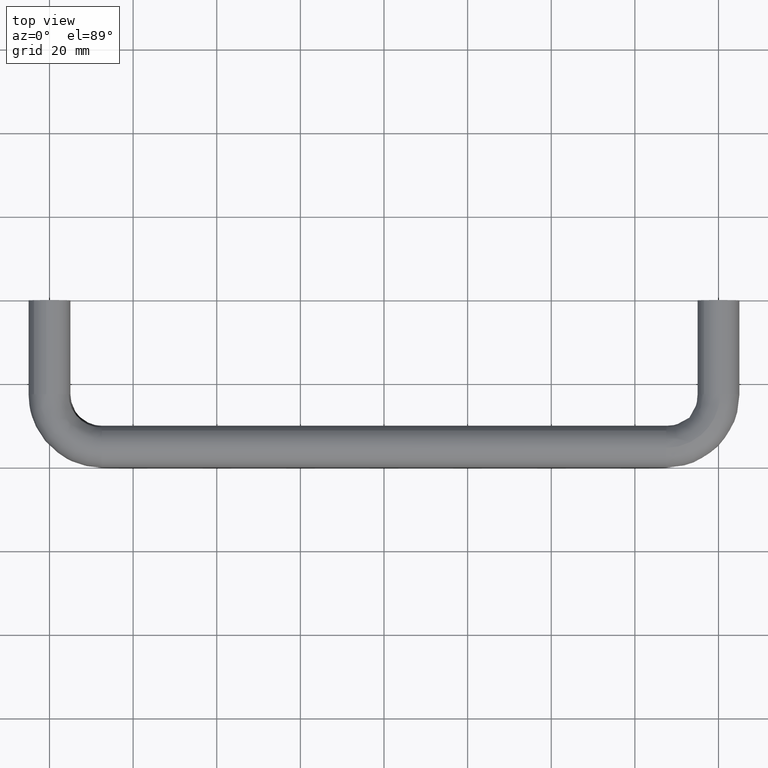
[diagram: clean part render]
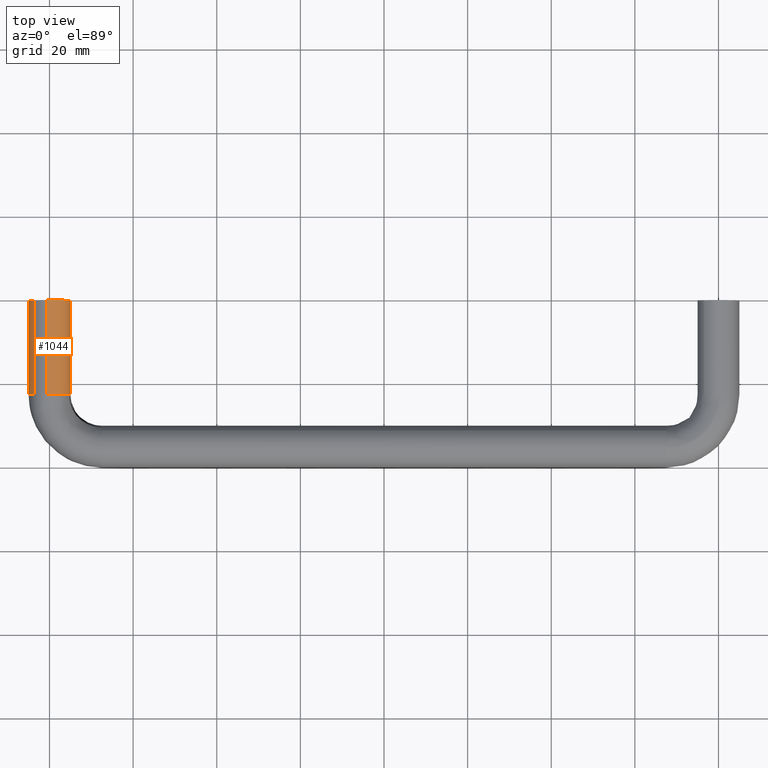
[diagram: same view with one face highlighted and labeled with its STEP entity id]
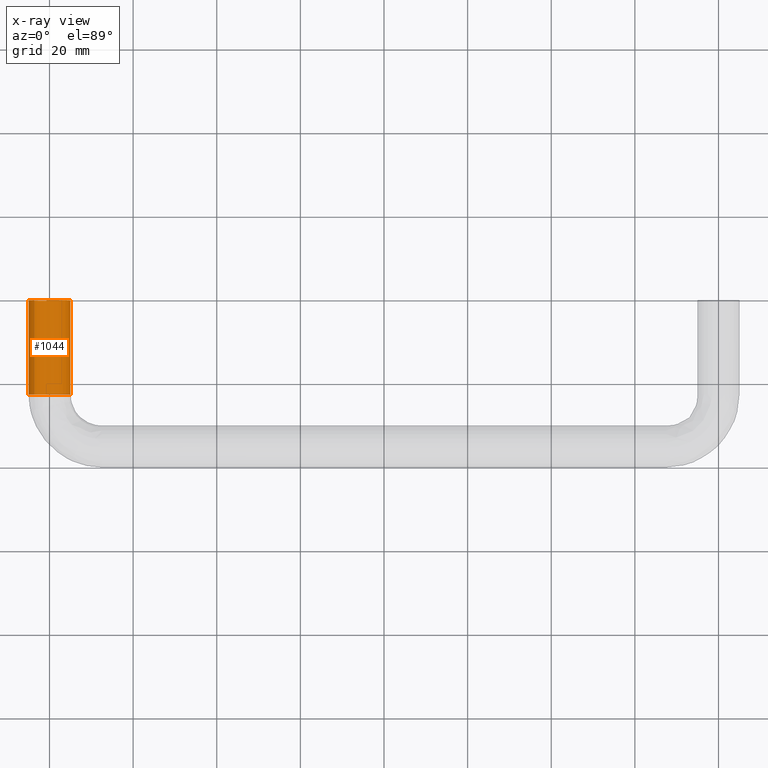
[diagram: x-ray of the same camera — body ghosted, the highlighted face saturated]
A machine part, top view. The second image highlights one B-rep face of the part: STEP entity #1044.
The next image is the same camera in x-ray: the body ghosted, the highlighted face saturated — about 0% of this face is hidden behind the body in this view.
In plain terms, the highlighted face is a freeform B-spline surface patch.
Its self-contained STEP definition (entity closure, byte-faithful):
#874=CARTESIAN_POINT('',(-3.704541040031022,0.562500000036337,3.358031519019121));
#875=CARTESIAN_POINT('',(-5.295144837890152,0.562500000036337,1.603296039550026));
#876=CARTESIAN_POINT('',(-4.945079316809583,0.562500000036337,-0.739047055648054));
#877=CARTESIAN_POINT('',(-4.206032261161528,0.562500000036337,-5.684126372457635));
#878=CARTESIAN_POINT('',(0.739047055648054,0.562500000036337,-4.945079316809583));
#879=CARTESIAN_POINT('',(5.684126372457635,0.562500000036338,-4.206032261161528));
#880=CARTESIAN_POINT('',(4.945079316809583,0.562500000036338,0.739047055648054));
#881=CARTESIAN_POINT('',(4.206032261161528,0.562500000036338,5.684126372457635));
#882=CARTESIAN_POINT('',(-0.739047055648054,0.562500000036337,4.945079316809583));
#883=CARTESIAN_POINT('',(-3.704541040031019,-23.076562501490685,3.358031519019121));
#884=CARTESIAN_POINT('',(-5.295144837890149,-23.076562501490685,1.603296039550026));
#885=CARTESIAN_POINT('',(-4.945079316809580,-23.076562501490692,-0.739047055648054));
#886=CARTESIAN_POINT('',(-4.206032261161528,-23.076562501490699,-5.684126372457635));
#887=CARTESIAN_POINT('',(0.739047055648057,-23.076562501490692,-4.945079316809583));
#888=CARTESIAN_POINT('',(5.684126372457641,-23.076562501490699,-4.206032261161528));
#889=CARTESIAN_POINT('',(4.945079316809586,-23.076562501490692,0.739047055648054));
#890=CARTESIAN_POINT('',(4.206032261161532,-23.076562501490699,5.684126372457635));
#891=CARTESIAN_POINT('',(-0.739047055648051,-23.076562501490692,4.945079316809583));
#899=(BOUNDED_SURFACE()B_SPLINE_SURFACE(2,1,((#874,#883),(#875,#884),(#876,#885),(#877,#886),(#878,#887),(#879,#888),(#880,#889),(#881,#890),(#882,#891)),.UNSPECIFIED.,.F.,.F.,.U.)B_SPLINE_SURFACE_WITH_KNOTS((3,2,2,2,3),(2,2),(0.0,4.639191898578663,12.923463146040559,21.207734393502459,29.492005640964361),(0.0,23.639062501527029),.UNSPECIFIED.)GEOMETRIC_REPRESENTATION_ITEM()RATIONAL_B_SPLINE_SURFACE(((0.855662221768731,0.855662221768731),(0.835979797464467,0.835979797464467),(1.0,1.0),(0.707106781186548,0.707106781186548),(1.0,1.0),(0.707106781186548,0.707106781186548),(1.0,1.0),(0.707106781186548,0.707106781186548),(1.0,1.0)))REPRESENTATION_ITEM('')SURFACE());
#900=CARTESIAN_POINT('',(-3.704543296746590,-22.499999999999879,3.358029029433574));
#901=VERTEX_POINT('',#900);
#902=CARTESIAN_POINT('',(-4.999999999999997,-22.500000000000000,0.0));
#903=VERTEX_POINT('',#902);
#904=CARTESIAN_POINT('',(-3.704543296746589,-22.499999999999883,3.358029029433574));
#905=CARTESIAN_POINT('',(-4.999999999999996,-22.500000000000000,1.928894437626099));
#906=CARTESIAN_POINT('',(-4.999999999999997,-22.500000000000000,0.0));
#914=(BOUNDED_CURVE()B_SPLINE_CURVE(2,(#904,#905,#906),.UNSPECIFIED.,.F.,.U.)B_SPLINE_CURVE_WITH_KNOTS((3,3),(0.882398655225513,1.0),.UNSPECIFIED.)CURVE()GEOMETRIC_REPRESENTATION_ITEM()RATIONAL_B_SPLINE_CURVE((0.854066446716059,0.862221454368840,1.0))REPRESENTATION_ITEM(''));
#915=EDGE_CURVE('',#901,#903,#914,.T.);
#916=ORIENTED_EDGE('',*,*,#915,.F.);
#917=CARTESIAN_POINT('',(-3.704543268906057,-4.216880E-016,3.358029060147010));
#918=VERTEX_POINT('',#917);
#919=CARTESIAN_POINT('',(-3.704543268906057,-4.216880E-016,3.358029060147010));
#920=CARTESIAN_POINT('',(-3.704543296746590,-22.499999999999879,3.358029029433574));
#921=QUASI_UNIFORM_CURVE('',1,(#919,#920),.UNSPECIFIED.,.F.,.U.);
#922=EDGE_CURVE('',#918,#901,#921,.T.);
#923=ORIENTED_EDGE('',*,*,#922,.F.);
#924=CARTESIAN_POINT('',(-5.0,0.0,0.0));
#925=VERTEX_POINT('',#924);
#926=CARTESIAN_POINT('',(-3.704543268906057,-4.216880E-016,3.358029060147009));
#927=CARTESIAN_POINT('',(-5.0,0.0,1.928894461437639));
#928=CARTESIAN_POINT('',(-5.0,0.0,0.0));
#936=(BOUNDED_CURVE()B_SPLINE_CURVE(2,(#926,#927,#928),.UNSPECIFIED.,.F.,.U.)B_SPLINE_CURVE_WITH_KNOTS((3,3),(0.882398653973784,1.0),.UNSPECIFIED.)CURVE()GEOMETRIC_REPRESENTATION_ITEM()RATIONAL_B_SPLINE_CURVE((0.854066446542458,0.862221452902348,1.0))REPRESENTATION_ITEM(''));
#937=EDGE_CURVE('',#918,#925,#936,.T.);
#938=ORIENTED_EDGE('',*,*,#937,.T.);
#939=CARTESIAN_POINT('',(5.0,0.0,0.0));
#940=VERTEX_POINT('',#939);
#941=CARTESIAN_POINT('',(-5.0,0.0,0.0));
#942=CARTESIAN_POINT('',(-5.000000000000001,0.0,-5.000000000000001));
#943=CARTESIAN_POINT('',(0.0,0.0,-5.0));
#944=CARTESIAN_POINT('',(5.000000000000001,0.0,-5.000000000000001));
#945=CARTESIAN_POINT('',(5.0,0.0,0.0));
#953=(BOUNDED_CURVE()B_SPLINE_CURVE(2,(#941,#942,#943,#944,#945),.UNSPECIFIED.,.F.,.U.)B_SPLINE_CURVE_WITH_KNOTS((3,2,3),(0.0,0.250000000000000,0.500000000000000),.UNSPECIFIED.)CURVE()GEOMETRIC_REPRESENTATION_ITEM()RATIONAL_B_SPLINE_CURVE((1.0,0.707106781186548,1.0,0.707106781186548,1.0))REPRESENTATION_ITEM(''));
#954=EDGE_CURVE('',#925,#940,#953,.T.);
#955=ORIENTED_EDGE('',*,*,#954,.T.);
#956=CARTESIAN_POINT('',(-0.739047055678354,-2.220446E-016,4.945079316805055));
#957=VERTEX_POINT('',#956);
#958=CARTESIAN_POINT('',(5.0,0.0,0.0));
#959=CARTESIAN_POINT('',(5.000000000000001,0.0,5.000000000000001));
#960=CARTESIAN_POINT('',(0.0,0.0,5.0));
#961=CARTESIAN_POINT('',(-0.371564183736669,0.0,5.000000000000001));
#962=CARTESIAN_POINT('',(-0.739047055678354,-2.220446E-016,4.945079316805055));
#970=(BOUNDED_CURVE()B_SPLINE_CURVE(2,(#958,#959,#960,#961,#962),.UNSPECIFIED.,.F.,.U.)B_SPLINE_CURVE_WITH_KNOTS((3,2,3),(0.500000000000000,0.750000000000000,0.775488969613789),.UNSPECIFIED.)CURVE()GEOMETRIC_REPRESENTATION_ITEM()RATIONAL_B_SPLINE_CURVE((1.0,0.707106781186548,1.0,0.970137814582317,0.946364879858335))REPRESENTATION_ITEM(''));
#971=EDGE_CURVE('',#940,#957,#970,.T.);
#972=ORIENTED_EDGE('',*,*,#971,.T.);
#973=CARTESIAN_POINT('',(-0.739047056177648,-22.500000000000000,4.945079316730435));
#974=VERTEX_POINT('',#973);
#975=CARTESIAN_POINT('',(-0.739047055678354,-2.220446E-016,4.945079316805055));
#976=CARTESIAN_POINT('',(-0.739047056177648,-22.500000000000000,4.945079316730435));
#977=QUASI_UNIFORM_CURVE('',1,(#975,#976),.UNSPECIFIED.,.F.,.U.);
#978=EDGE_CURVE('',#957,#974,#977,.T.);
#979=ORIENTED_EDGE('',*,*,#978,.T.);
#980=CARTESIAN_POINT('',(4.550529853313581,-22.500000000180162,2.071877905211092));
#981=VERTEX_POINT('',#980);
#982=CARTESIAN_POINT('',(4.550529853313581,-22.500000000180169,2.071877905211091));
#983=CARTESIAN_POINT('',(3.217341923912157,-22.499999999999989,5.000000000000001));
#984=CARTESIAN_POINT('',(2.755364E-015,-22.500000000000000,5.0));
#985=CARTESIAN_POINT('',(-0.371564184244270,-22.500000000000000,5.0));
#986=CARTESIAN_POINT('',(-0.739047056177648,-22.500000000000004,4.945079316730435));
#994=(BOUNDED_CURVE()B_SPLINE_CURVE(2,(#982,#983,#984,#985,#986),.UNSPECIFIED.,.F.,.U.)B_SPLINE_CURVE_WITH_KNOTS((3,2,3),(0.570375489974829,0.750000000000000,0.775488969647570),.UNSPECIFIED.)CURVE()GEOMETRIC_REPRESENTATION_ITEM()RATIONAL_B_SPLINE_CURVE((0.881519651435291,0.789556796323754,1.0,0.970137814542740,0.946364879795321))REPRESENTATION_ITEM(''));
#995=EDGE_CURVE('',#981,#974,#994,.T.);
#996=ORIENTED_EDGE('',*,*,#995,.F.);
#997=CARTESIAN_POINT('',(5.000000000000003,-22.500000000000000,0.0));
#998=VERTEX_POINT('',#997);
#999=CARTESIAN_POINT('',(5.000000000000003,-22.500000000000000,0.0));
#1000=CARTESIAN_POINT('',(5.000000000000003,-22.500000000000000,1.084692649152395));
#1001=CARTESIAN_POINT('',(4.550529853313581,-22.500000000180162,2.071877905211092));
#1009=(BOUNDED_CURVE()B_SPLINE_CURVE(2,(#999,#1000,#1001),.UNSPECIFIED.,.F.,.U.)B_SPLINE_CURVE_WITH_KNOTS((3,3),(0.500000000000000,0.570375489974830),.UNSPECIFIED.)CURVE()GEOMETRIC_REPRESENTATION_ITEM()RATIONAL_B_SPLINE_CURVE((1.0,0.917549984862793,0.881519651435290))REPRESENTATION_ITEM(''));
#1010=EDGE_CURVE('',#998,#981,#1009,.T.);
#1011=ORIENTED_EDGE('',*,*,#1010,.F.);
#1012=CARTESIAN_POINT('',(1.808231368748996,-22.500000001453440,-4.661576913134882));
#1013=VERTEX_POINT('',#1012);
#1014=CARTESIAN_POINT('',(1.808231368748997,-22.500000001453444,-4.661576913134882));
#1015=CARTESIAN_POINT('',(5.000000000000003,-22.499999999999996,-3.423485967838657));
#1016=CARTESIAN_POINT('',(5.000000000000003,-22.500000000000000,0.0));
#1024=(BOUNDED_CURVE()B_SPLINE_CURVE(2,(#1014,#1015,#1016),.UNSPECIFIED.,.F.,.U.)B_SPLINE_CURVE_WITH_KNOTS((3,3),(0.311409344403013,0.500000000000000),.UNSPECIFIED.)CURVE()GEOMETRIC_REPRESENTATION_ITEM()RATIONAL_B_SPLINE_CURVE((0.891453974423832,0.779052303376237,1.0))REPRESENTATION_ITEM(''));
#1025=EDGE_CURVE('',#1013,#998,#1024,.T.);
#1026=ORIENTED_EDGE('',*,*,#1025,.F.);
#1027=CARTESIAN_POINT('',(-4.999999999999997,-22.500000000000000,0.0));
#1028=CARTESIAN_POINT('',(-4.999999999999997,-22.500000000000000,-5.000000000000001));
#1029=CARTESIAN_POINT('',(2.755364E-015,-22.500000000000000,-5.0));
#1030=CARTESIAN_POINT('',(0.935784803453444,-22.500000000000004,-5.0));
#1031=CARTESIAN_POINT('',(1.808231368748997,-22.500000001453444,-4.661576913134882));
#1039=(BOUNDED_CURVE()B_SPLINE_CURVE(2,(#1027,#1028,#1029,#1030,#1031),.UNSPECIFIED.,.F.,.U.)B_SPLINE_CURVE_WITH_KNOTS((3,2,3),(0.0,0.250000000000000,0.311409344403013),.UNSPECIFIED.)CURVE()GEOMETRIC_REPRESENTATION_ITEM()RATIONAL_B_SPLINE_CURVE((1.0,0.707106781186548,1.0,0.928054477810311,0.891453974423832))REPRESENTATION_ITEM(''));
#1040=EDGE_CURVE('',#903,#1013,#1039,.T.);
#1041=ORIENTED_EDGE('',*,*,#1040,.F.);
#1042=EDGE_LOOP('',(#916,#923,#938,#955,#972,#979,#996,#1011,#1026,#1041));
#1043=FACE_OUTER_BOUND('',#1042,.T.);
#1044=ADVANCED_FACE('',(#1043),#899,.T.);